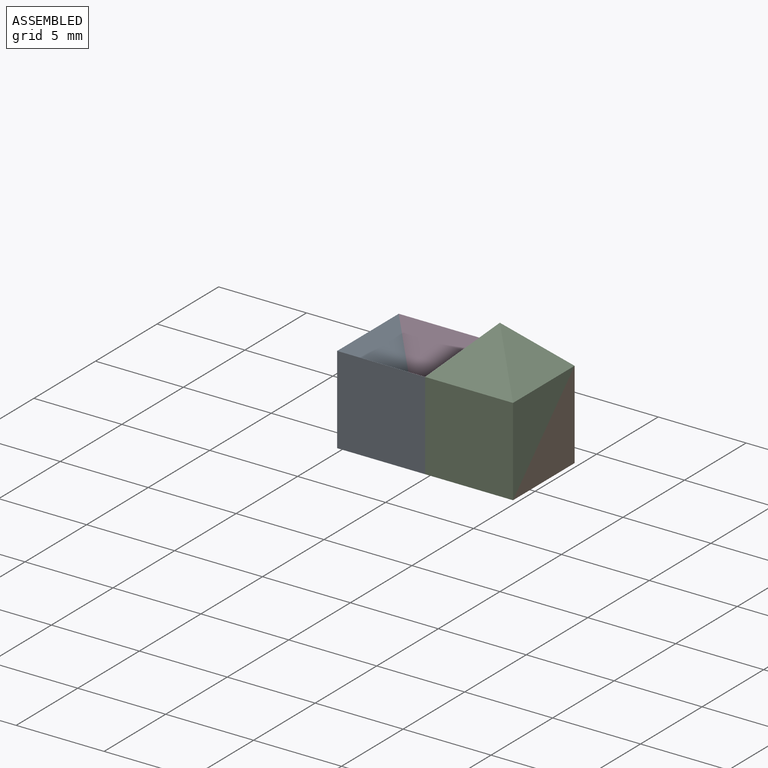
[diagram: assembled view]
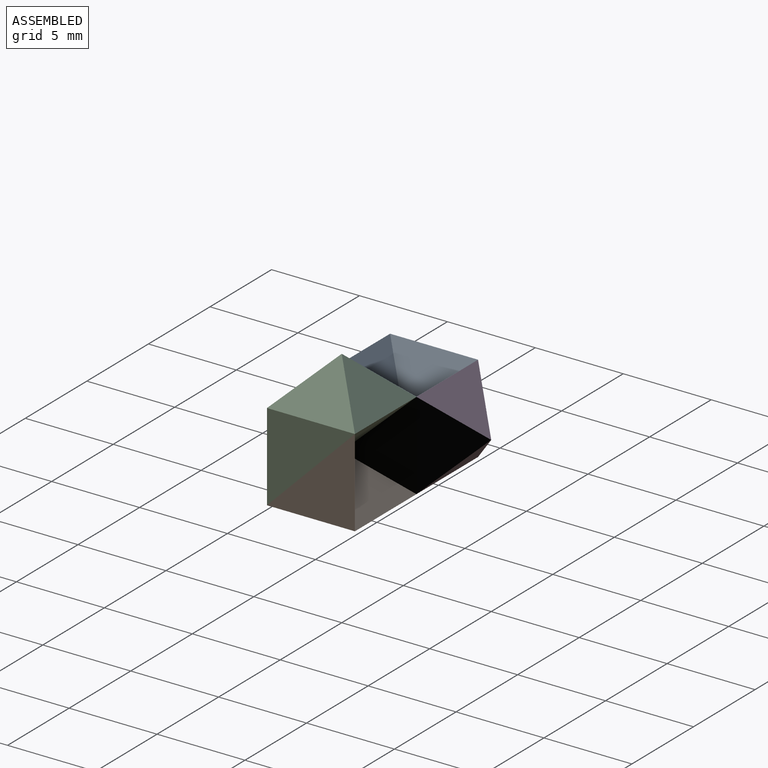
[diagram: assembled view, second angle]
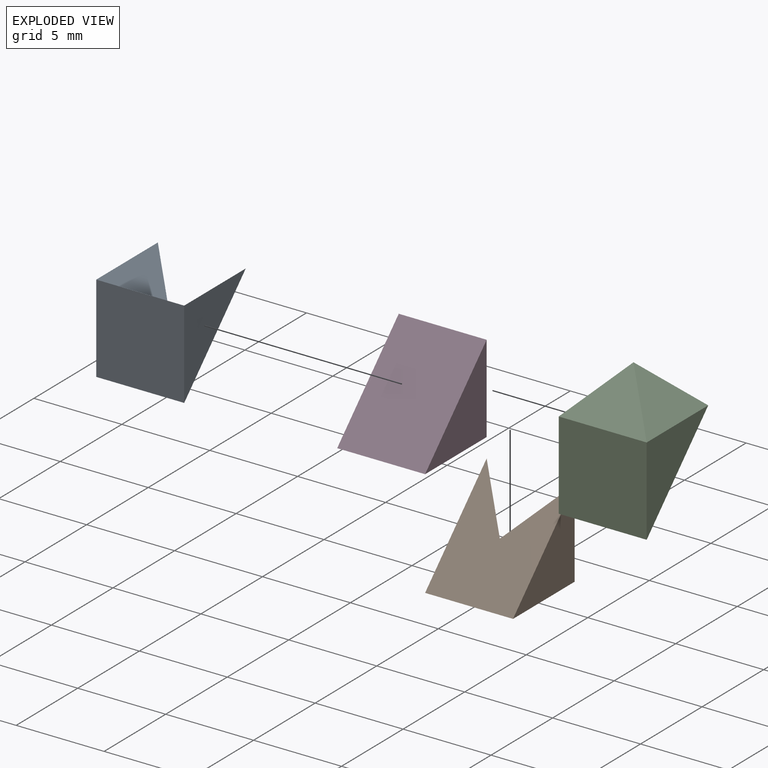
[diagram: exploded view]
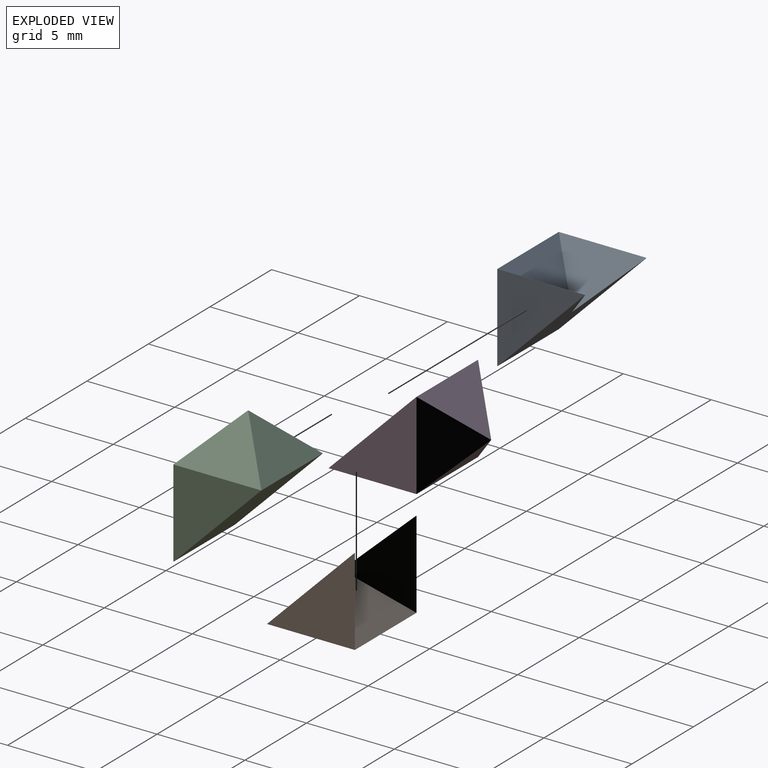
[diagram: exploded view, second angle]
ASSEMBLY  parts=4 mates=3
PART A: 7 faces, bbox 5x5x5 mm
  f0: plane 5x5mm, normal (0,1,0), area 12.5mm2, adj f3,f5,f6
  f1: plane 5x2.5mm, normal (-0.71,0,0.71), area 8.8mm2, adj f3,f4,f5
  f2: plane 5x5mm, normal (0,-1,0), area 12.5mm2, adj f3,f4,f6
  f3: plane 5x5mm, normal (1,0,0), area 25mm2, adj f0,f1,f2,f6
  f4: plane 5x2.5mm, normal (0,0.71,0.71), area 8.8mm2, adj f1,f2,f6
  f5: plane 5x2.5mm, normal (0,-0.71,0.71), area 8.8mm2, adj f0,f1,f6
  f6: plane 5x5mm, normal (-0.71,0,-0.71), area 26.5mm2, adj f0,f2,f3,f4,f5
PART B: same geometry as A
PART C: 8 faces, bbox 5x5x7.5 mm
  f0: plane 5x5mm, normal (1,0,0), area 12.5mm2, adj f1,f3,f7
  f1: plane 5x5mm, normal (0,-1,0), area 25mm2, adj f0,f2,f5,f7
  f2: plane 5x5mm, normal (-1,0,0), area 12.5mm2, adj f1,f4,f7
  f3: plane 5x2.5mm, normal (0.71,0,0.71), area 8.8mm2, adj f0,f5,f6
  f4: plane 5x2.5mm, normal (-0.71,0,0.71), area 8.8mm2, adj f2,f5,f6
  f5: plane 5x2.5mm, normal (0,-0.71,0.71), area 8.8mm2, adj f1,f3,f4
  f6: plane 5x2.5mm, normal (0,0.71,0.71), area 8.8mm2, adj f3,f4,f7
  f7: plane 5x5mm, normal (0,0.71,-0.71), area 35.4mm2, adj f0,f1,f2,f6
PART D: same geometry as C
PLACE A rot(axis=(0,0,-1),90deg) t=(-5,0,0)mm
PLACE B rot(axis=(-0.58,0.58,0.58),120deg) t=(0,-2.5,2.5)mm
PLACE C at identity
PLACE D rot(axis=(0,-0.71,-0.71),180deg) t=(-5,-2.5,2.5)mm
MATE fastened D.f2 <-> B.f0  axis (1,0,0) through (-2.5,2.5,0)mm
MATE fastened A.f0 <-> C.f2  axis (1,0,0) through (-2.5,-2.5,5)mm
MATE fastened B.f6 <-> C.f7  axis (0,-0.71,0.71) through (0,0,2.5)mm
